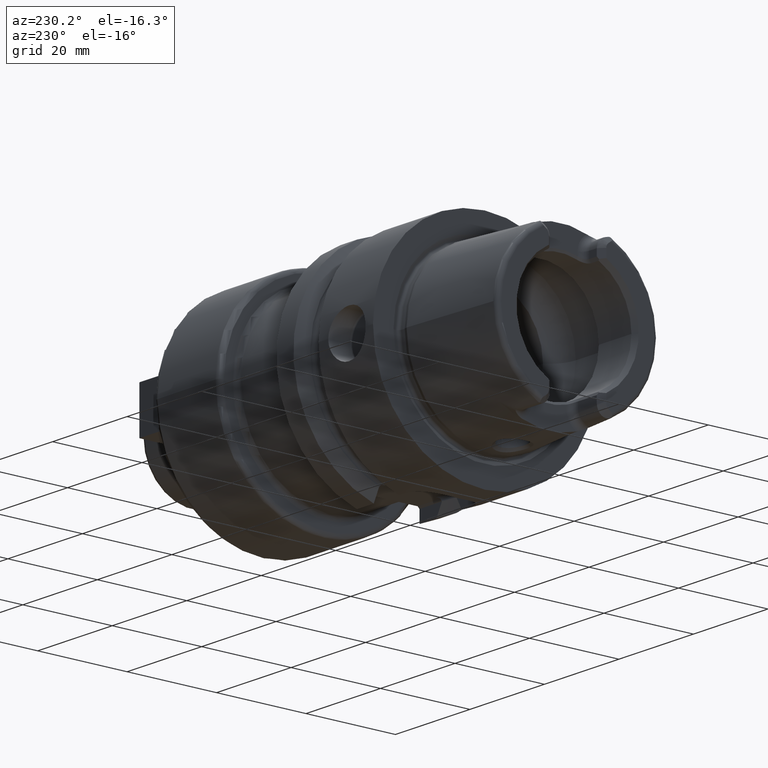
[diagram: clean part render]
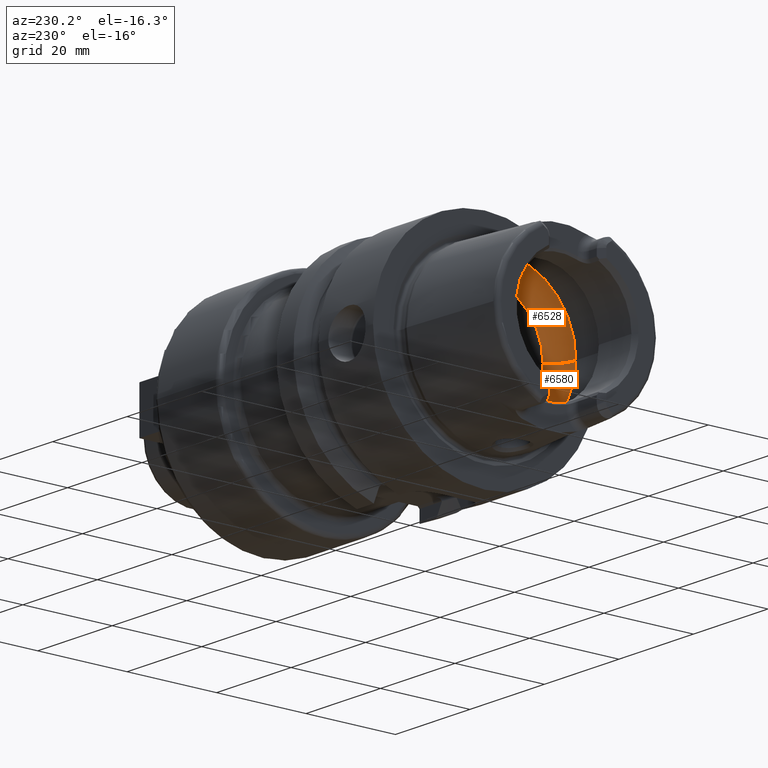
[diagram: same view with one multi-face feature highlighted, each face labeled with its STEP entity id]
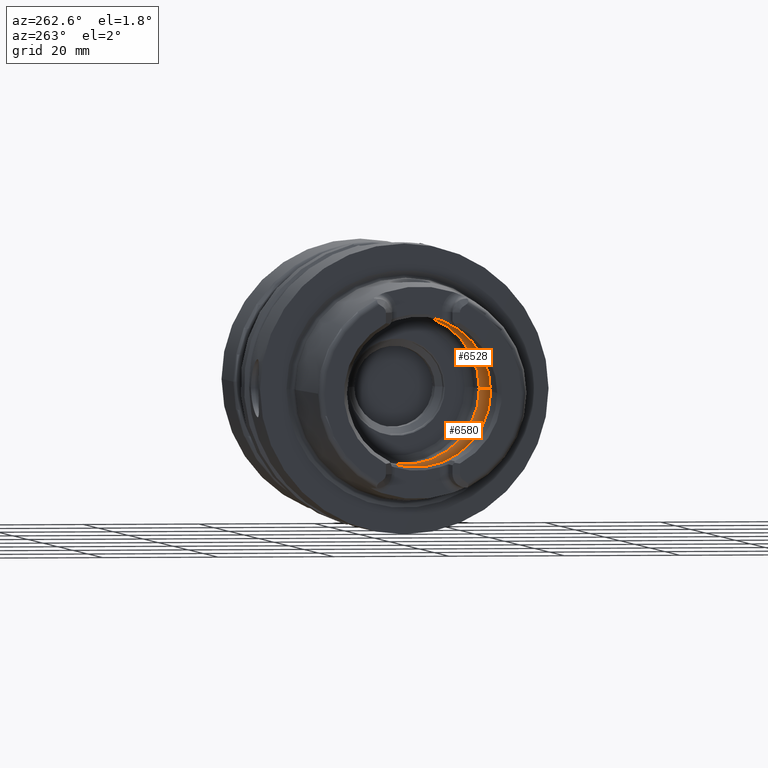
[diagram: same view with one multi-face feature highlighted, each face labeled with its STEP entity id]
A machine part, auxiliary view. The highlighted faces form ONE feature: a constant-radius fillet chain: 2 tangent blend faces with common blend radius 6 mm. The faces share edges in the B-rep.
A second angle (auxiliary view) of the same feature is appended — it is thin or edge-on in the first view.
Their STEP definitions:
[1] entity #6528 (Torus):
#2391=CARTESIAN_POINT('',(-4.5E0,0.E0,1.599819131363E1));
#2392=CARTESIAN_POINT('',(-4.5E0,1.393933285662E-1,1.599819131363E1));
#2393=CARTESIAN_POINT('',(-4.519404191081E0,4.194544956419E-1,
1.599688659151E1));
#2394=CARTESIAN_POINT('',(-4.608514252748E0,8.368427430076E-1,
1.599033330284E1));
#2395=CARTESIAN_POINT('',(-4.756111350291E0,1.237284710770E0,1.597758887261E1));
#2396=CARTESIAN_POINT('',(-4.955426617124E0,1.607186531253E0,1.595666056940E1));
#2397=CARTESIAN_POINT('',(-5.118862175482E0,1.829998924173E0,1.593561410958E1));
#2398=CARTESIAN_POINT('',(-5.207075858867E0,1.934553923521E0,1.592291120106E1));
#2400=CARTESIAN_POINT('',(-5.207075858867E0,-1.934553923521E0,
1.592291120106E1));
#2401=CARTESIAN_POINT('',(-5.118900024865E0,-1.830043785039E0,
1.593560865920E1));
#2402=CARTESIAN_POINT('',(-4.955463769315E0,-1.607278697505E0,
1.595665773659E1));
#2403=CARTESIAN_POINT('',(-4.755897029316E0,-1.236851245102E0,
1.597761021240E1));
#2404=CARTESIAN_POINT('',(-4.608377605542E0,-8.363601809663E-1,
1.599034363703E1));
#2405=CARTESIAN_POINT('',(-4.519347393058E0,-4.189919635640E-1,
1.599689053867E1));
#2406=CARTESIAN_POINT('',(-4.5E0,-1.392080742489E-1,1.599819131363E1));
#2407=CARTESIAN_POINT('',(-4.5E0,0.E0,1.599819131363E1));
#2409=CARTESIAN_POINT('',(0.E0,0.E0,0.E0));
#2410=DIRECTION('',(1.E0,0.E0,0.E0));
#2411=DIRECTION('',(0.E0,1.E0,0.E0));
#2412=AXIS2_PLACEMENT_3D('',#2409,#2410,#2411);
#2433=CARTESIAN_POINT('',(-5.207075858867E0,0.E0,0.E0));
#2434=DIRECTION('',(1.E0,0.E0,0.E0));
#2435=DIRECTION('',(0.E0,1.E0,0.E0));
#2436=AXIS2_PLACEMENT_3D('',#2433,#2434,#2435);
#2438=CARTESIAN_POINT('',(-5.207075858867E0,0.E0,0.E0));
#2439=DIRECTION('',(1.E0,0.E0,0.E0));
#2440=DIRECTION('',(0.E0,-1.206080999702E-1,9.927001995676E-1));
#2441=AXIS2_PLACEMENT_3D('',#2438,#2439,#2440);
#2527=CARTESIAN_POINT('',(-5.207075858867E0,1.004E1,0.E0));
#2528=DIRECTION('',(0.E0,0.E0,1.E0));
#2529=DIRECTION('',(8.678459764779E-1,4.968333333333E-1,0.E0));
#2530=AXIS2_PLACEMENT_3D('',#2527,#2528,#2529);
#2537=CARTESIAN_POINT('',(-5.207075858867E0,-1.004E1,0.E0));
#2538=DIRECTION('',(0.E0,0.E0,-1.E0));
#2539=DIRECTION('',(8.678459764779E-1,-4.968333333333E-1,0.E0));
#2540=AXIS2_PLACEMENT_3D('',#2537,#2538,#2539);
#3315=CARTESIAN_POINT('',(-4.5E0,0.E0,1.599819131363E1));
#3316=VERTEX_POINT('',#3315);
#3333=CARTESIAN_POINT('',(0.E0,1.3021E1,0.E0));
#3334=VERTEX_POINT('',#3333);
#3335=CARTESIAN_POINT('',(-5.207075858867E0,1.604E1,0.E0));
#3336=VERTEX_POINT('',#3335);
#3345=CARTESIAN_POINT('',(0.E0,-1.3021E1,0.E0));
#3346=VERTEX_POINT('',#3345);
#3347=CARTESIAN_POINT('',(-5.207075858867E0,-1.604E1,0.E0));
#3348=VERTEX_POINT('',#3347);
#3365=VERTEX_POINT('',#2398);
#3366=VERTEX_POINT('',#2400);
#6509=CARTESIAN_POINT('',(-5.207075858867E0,0.E0,0.E0));
#6510=DIRECTION('',(1.E0,0.E0,0.E0));
#6511=DIRECTION('',(0.E0,-1.E0,0.E0));
#6512=AXIS2_PLACEMENT_3D('',#6509,#6510,#6511);
#6513=TOROIDAL_SURFACE('',#6512,1.004E1,6.E0);
#6514=ORIENTED_EDGE('',*,*,#6486,.F.);
#6515=ORIENTED_EDGE('',*,*,#6260,.F.);
#6517=ORIENTED_EDGE('',*,*,#6516,.T.);
#6519=ORIENTED_EDGE('',*,*,#6518,.F.);
#6521=ORIENTED_EDGE('',*,*,#6520,.F.);
#6523=ORIENTED_EDGE('',*,*,#6522,.T.);
#6525=ORIENTED_EDGE('',*,*,#6524,.T.);
#6526=EDGE_LOOP('',(#6514,#6515,#6517,#6519,#6521,#6523,#6525));
#6527=FACE_OUTER_BOUND('',#6526,.F.);
#6528=ADVANCED_FACE('',(#6527),#6513,.F.);
#2399=B_SPLINE_CURVE_WITH_KNOTS('',3,(#2391,#2392,#2393,#2394,#2395,#2396,#2397,
#2398),.UNSPECIFIED.,.F.,.F.,(4,1,1,1,1,4),(0.E0,2.E-1,4.E-1,6.E-1,8.E-1,1.E0),
.UNSPECIFIED.);
#2408=B_SPLINE_CURVE_WITH_KNOTS('',3,(#2400,#2401,#2402,#2403,#2404,#2405,#2406,
#2407),.UNSPECIFIED.,.F.,.F.,(4,1,1,1,1,4),(0.E0,2.E-1,4.E-1,6.E-1,8.E-1,1.E0),
.UNSPECIFIED.);
#2413=CIRCLE('',#2412,1.3021E1);
#2437=CIRCLE('',#2436,1.604E1);
#2442=CIRCLE('',#2441,1.604E1);
#2531=CIRCLE('',#2530,6.E0);
#2541=CIRCLE('',#2540,6.E0);
#6260=EDGE_CURVE('',#3366,#3316,#2408,.T.);
#6486=EDGE_CURVE('',#3316,#3365,#2399,.T.);
#6516=EDGE_CURVE('',#3366,#3348,#2442,.T.);
#6518=EDGE_CURVE('',#3346,#3348,#2541,.T.);
#6520=EDGE_CURVE('',#3334,#3346,#2413,.T.);
#6522=EDGE_CURVE('',#3334,#3336,#2531,.T.);
#6524=EDGE_CURVE('',#3336,#3365,#2437,.T.);
[2] entity #6580 (Torus):
#2500=CARTESIAN_POINT('',(-5.207075858867E0,0.E0,0.E0));
#2501=DIRECTION('',(-1.E0,0.E0,0.E0));
#2502=DIRECTION('',(0.E0,-1.206080999702E-1,-9.927001995676E-1));
#2503=AXIS2_PLACEMENT_3D('',#2500,#2501,#2502);
#2513=CARTESIAN_POINT('',(-5.207075858867E0,0.E0,0.E0));
#2514=DIRECTION('',(-1.E0,0.E0,0.E0));
#2515=DIRECTION('',(0.E0,1.E0,0.E0));
#2516=AXIS2_PLACEMENT_3D('',#2513,#2514,#2515);
#2518=CARTESIAN_POINT('',(-5.207075858867E0,1.934553923521E0,
-1.592291120106E1));
#2519=CARTESIAN_POINT('',(-5.118824210050E0,1.829953925761E0,
-1.593561957666E1));
#2520=CARTESIAN_POINT('',(-4.955339216306E0,1.607057846558E0,
-1.595667111021E1));
#2521=CARTESIAN_POINT('',(-4.756013687200E0,1.237072947635E0,
-1.597759816412E1));
#2522=CARTESIAN_POINT('',(-4.608446533562E0,8.366068361804E-1,
-1.599033856812E1));
#2523=CARTESIAN_POINT('',(-4.519381773364E0,4.192588342496E-1,
-1.599688809406E1));
#2524=CARTESIAN_POINT('',(-4.5E0,1.393160811055E-1,-1.599819131363E1));
#2525=CARTESIAN_POINT('',(-4.5E0,0.E0,-1.599819131363E1));
#2527=CARTESIAN_POINT('',(-5.207075858867E0,1.004E1,0.E0));
#2528=DIRECTION('',(0.E0,0.E0,1.E0));
#2529=DIRECTION('',(8.678459764779E-1,4.968333333333E-1,0.E0));
#2530=AXIS2_PLACEMENT_3D('',#2527,#2528,#2529);
#2532=CARTESIAN_POINT('',(0.E0,0.E0,0.E0));
#2533=DIRECTION('',(-1.E0,0.E0,0.E0));
#2534=DIRECTION('',(0.E0,1.E0,0.E0));
#2535=AXIS2_PLACEMENT_3D('',#2532,#2533,#2534);
#2537=CARTESIAN_POINT('',(-5.207075858867E0,-1.004E1,0.E0));
#2538=DIRECTION('',(0.E0,0.E0,-1.E0));
#2539=DIRECTION('',(8.678459764779E-1,-4.968333333333E-1,0.E0));
#2540=AXIS2_PLACEMENT_3D('',#2537,#2538,#2539);
#2542=CARTESIAN_POINT('',(-4.5E0,0.E0,-1.599819131363E1));
#2543=CARTESIAN_POINT('',(-4.5E0,-1.392836551494E-1,-1.599819131363E1));
#2544=CARTESIAN_POINT('',(-4.519369128421E0,-4.191839914949E-1,
-1.599688908511E1));
#2545=CARTESIAN_POINT('',(-4.608445858898E0,-8.365987177972E-1,
-1.599033833422E1));
#2546=CARTESIAN_POINT('',(-4.755995653741E0,-1.237064902814E0,
-1.597760082811E1));
#2547=CARTESIAN_POINT('',(-4.955551470065E0,-1.607407742941E0,
-1.595664715424E1));
#2548=CARTESIAN_POINT('',(-5.118938063898E0,-1.830088870687E0,
-1.593560318152E1));
#2549=CARTESIAN_POINT('',(-5.207075858867E0,-1.934553923521E0,
-1.592291120106E1));
#3323=CARTESIAN_POINT('',(-4.5E0,0.E0,-1.599819131363E1));
#3324=VERTEX_POINT('',#3323);
#3333=CARTESIAN_POINT('',(0.E0,1.3021E1,0.E0));
#3334=VERTEX_POINT('',#3333);
#3335=CARTESIAN_POINT('',(-5.207075858867E0,1.604E1,0.E0));
#3336=VERTEX_POINT('',#3335);
#3345=CARTESIAN_POINT('',(0.E0,-1.3021E1,0.E0));
#3346=VERTEX_POINT('',#3345);
#3347=CARTESIAN_POINT('',(-5.207075858867E0,-1.604E1,0.E0));
#3348=VERTEX_POINT('',#3347);
#3367=VERTEX_POINT('',#2518);
#3368=VERTEX_POINT('',#2549);
#6565=CARTESIAN_POINT('',(-5.207075858867E0,0.E0,0.E0));
#6566=DIRECTION('',(1.E0,0.E0,0.E0));
#6567=DIRECTION('',(0.E0,-1.E0,0.E0));
#6568=AXIS2_PLACEMENT_3D('',#6565,#6566,#6567);
#6569=TOROIDAL_SURFACE('',#6568,1.004E1,6.E0);
#6570=ORIENTED_EDGE('',*,*,#6503,.F.);
#6571=ORIENTED_EDGE('',*,*,#6560,.F.);
#6572=ORIENTED_EDGE('',*,*,#6522,.F.);
#6574=ORIENTED_EDGE('',*,*,#6573,.T.);
#6575=ORIENTED_EDGE('',*,*,#6518,.T.);
#6576=ORIENTED_EDGE('',*,*,#6554,.F.);
#6577=ORIENTED_EDGE('',*,*,#6275,.F.);
#6578=EDGE_LOOP('',(#6570,#6571,#6572,#6574,#6575,#6576,#6577));
#6579=FACE_OUTER_BOUND('',#6578,.F.);
#6580=ADVANCED_FACE('',(#6579),#6569,.F.);
#2504=CIRCLE('',#2503,1.604E1);
#2517=CIRCLE('',#2516,1.604E1);
#2526=B_SPLINE_CURVE_WITH_KNOTS('',3,(#2518,#2519,#2520,#2521,#2522,#2523,#2524,
#2525),.UNSPECIFIED.,.F.,.F.,(4,1,1,1,1,4),(0.E0,2.E-1,4.E-1,6.E-1,8.E-1,1.E0),
.UNSPECIFIED.);
#2531=CIRCLE('',#2530,6.E0);
#2536=CIRCLE('',#2535,1.3021E1);
#2541=CIRCLE('',#2540,6.E0);
#2550=B_SPLINE_CURVE_WITH_KNOTS('',3,(#2542,#2543,#2544,#2545,#2546,#2547,#2548,
#2549),.UNSPECIFIED.,.F.,.F.,(4,1,1,1,1,4),(0.E0,2.E-1,4.E-1,6.E-1,8.E-1,1.E0),
.UNSPECIFIED.);
#6275=EDGE_CURVE('',#3324,#3368,#2550,.T.);
#6503=EDGE_CURVE('',#3367,#3324,#2526,.T.);
#6518=EDGE_CURVE('',#3346,#3348,#2541,.T.);
#6522=EDGE_CURVE('',#3334,#3336,#2531,.T.);
#6554=EDGE_CURVE('',#3368,#3348,#2504,.T.);
#6560=EDGE_CURVE('',#3336,#3367,#2517,.T.);
#6573=EDGE_CURVE('',#3334,#3346,#2536,.T.);